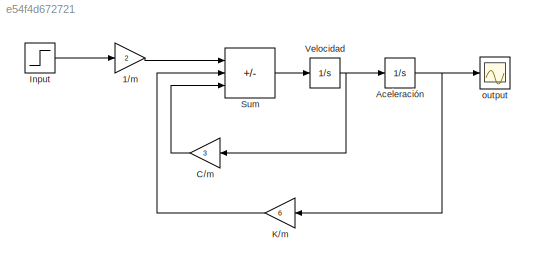
MODEL slx_e54f4d672721
KIND model
CONFIG AbsTol = auto
CONFIG EnableMultiTasking = off
CONFIG FixedStep = auto
CONFIG MaxStep = auto
CONFIG MinStep = auto
CONFIG RelTol = 1e-3
CONFIG SampleTimeConstraint = Unconstrained
CONFIG SolverName = VariableStepAuto
CONFIG StartTime = 0.0
CONFIG StopTime = 10.0
BLOCK [Gain] 1//m
  Gain = 2
BLOCK [Integrator] Aceleración
BLOCK [Gain] C//m
  Gain = 3
  NameLocation = top
BLOCK [Step] Input
  After = 5
  SampleTime = 0
  Time = 0
BLOCK [Gain] K//m
  Gain = 6
  NameLocation = top
BLOCK [Sum] Sum
  IconShape = rectangular
  Inputs = +--
BLOCK [Integrator] Velocidad
  ContinuousStateAttributes = 'Velocidad'
BLOCK [Scope] output
  Floating = off
  NumInputPorts = 1
  ScopeSpecificationString = Simulink.scopes.TimeScopeBlockCfg('CurrentConfiguration', extmgr.ConfigurationSet(extmgr.Configuration('Core','General UI',true),extmgr.Configuration('Core','Source UI',true),extmgr.Configuration('Sources','WiredSimulink',true),extmgr.Configuration('Visuals','Time Domain',true,'SerializedDisplays',{struct('MinYLimReal','-0.22659','MaxYLimReal','2.03929','YLabelReal','','MinYLimMag','0.00000','MaxY...<+1477ch>
LINE 1//m:1 -> Sum:1
NET Aceleración:1 -> K//m:1, output:1
LINE C//m:1 -> Sum:3
LINE Input:1 -> 1//m:1
LINE K//m:1 -> Sum:2
LINE Sum:1 -> Velocidad:1
NET Velocidad:1 -> Aceleración:1, C//m:1
note: NET lines group one-source signal fan-out (src -> all destinations, sorted); 1:1 wires keep LINE
